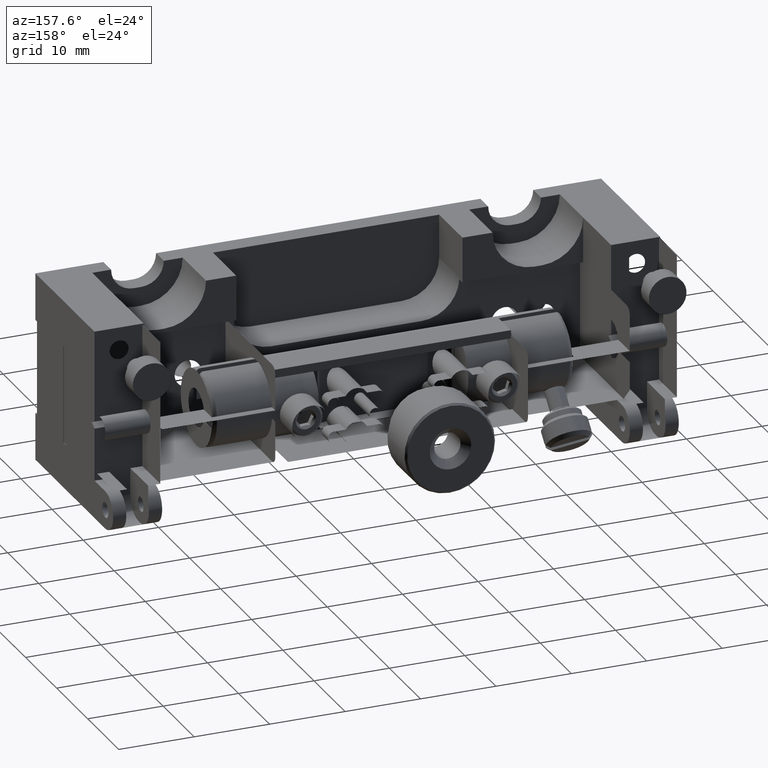
[diagram: clean part render]
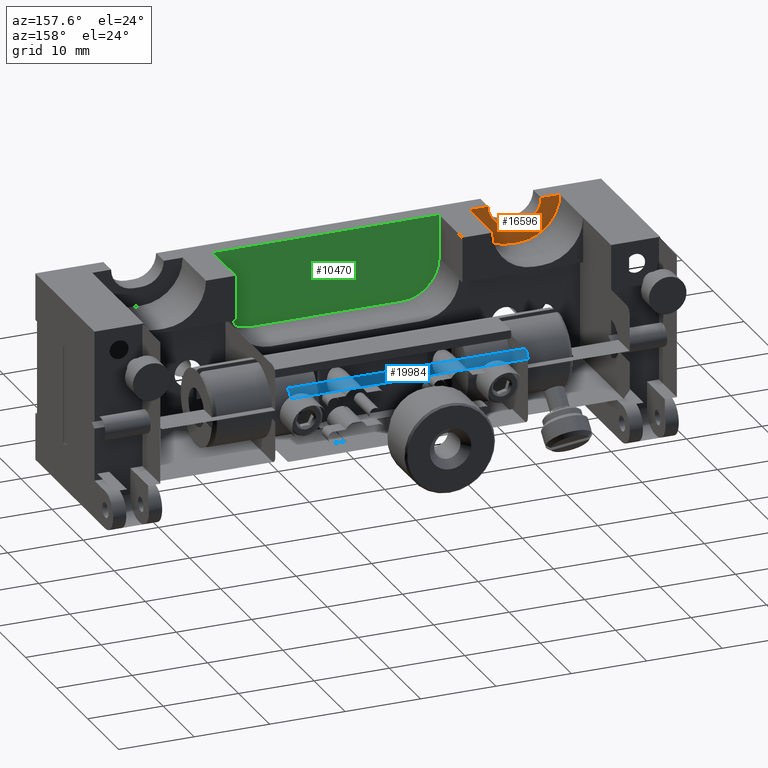
[diagram: same view with three faces highlighted in distinct colors, each labeled with its STEP entity id]
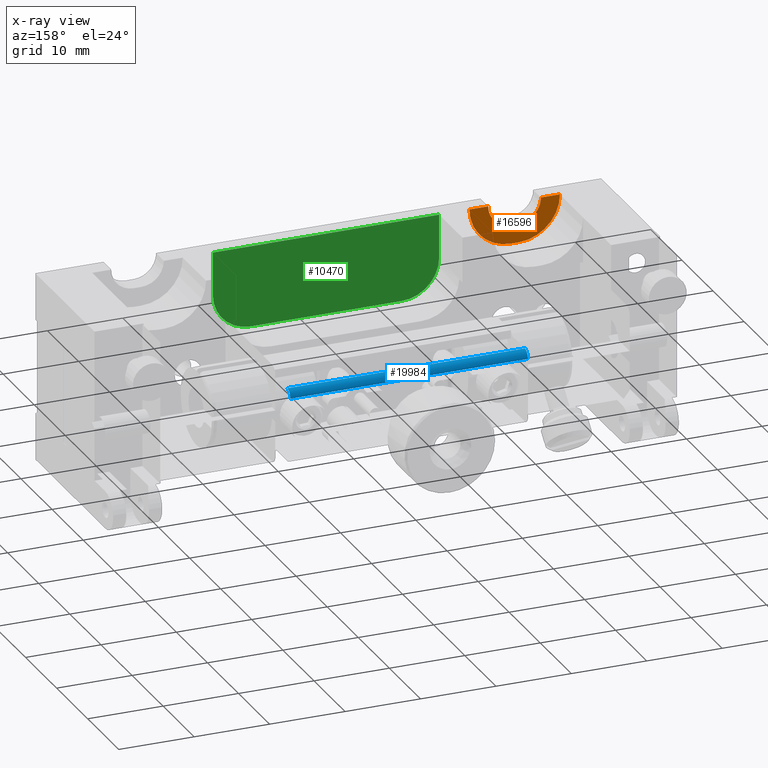
[diagram: x-ray of the same camera — body ghosted, the three highlighted faces saturated]
A machine part, auxiliary view with three faces highlighted in distinct colors.
The next image is the same camera in x-ray (body ghosted, the three faces saturated) — at least one of them is partly hidden behind the body in this view.
Their STEP definitions:

[orange] entity #16596 — the highlighted planar face has unit normal (0, 1, 0).
#211 = CIRCLE ( 'NONE', #2846, 3.000000000000002665 ) ;
#879 = EDGE_LOOP ( 'NONE', ( #17525, #12433, #13185, #8329, #10308, #6714, #9488, #5552 ) ) ;
#1086 = CIRCLE ( 'NONE', #10668, 5.500000000000005329 ) ;
#1108 = VERTEX_POINT ( 'NONE', #18504 ) ;
#1120 = DIRECTION ( 'NONE',  ( 0.000000000000000000, 0.000000000000000000, 1.000000000000000000 ) ) ;
#1355 = CARTESIAN_POINT ( 'NONE',  ( -4.673654033717510536, 30.67343476192750629, 78.43264947075056170 ) ) ;
#2178 = DIRECTION ( 'NONE',  ( -0.000000000000000000, -1.000000000000000000, -0.000000000000000000 ) ) ;
#2310 = EDGE_CURVE ( 'NONE', #16627, #16147, #211, .T. ) ;
#2798 = VERTEX_POINT ( 'NONE', #17398 ) ;
#2846 = AXIS2_PLACEMENT_3D ( 'NONE', #17420, #17524, #9760 ) ;
#3755 = AXIS2_PLACEMENT_3D ( 'NONE', #7044, #2178, #18309 ) ;
#4324 = VECTOR ( 'NONE', #10069, 1000.000000000000000 ) ;
#5552 = ORIENTED_EDGE ( 'NONE', *, *, #8541, .T. ) ;
#6127 = DIRECTION ( 'NONE',  ( 0.000000000000000000, 0.000000000000000000, 1.000000000000000000 ) ) ;
#6289 = AXIS2_PLACEMENT_3D ( 'NONE', #13164, #16379, #17818 ) ;
#6714 = ORIENTED_EDGE ( 'NONE', *, *, #8888, .T. ) ;
#7044 = CARTESIAN_POINT ( 'NONE',  ( -4.673654033717510536, 30.67343476192750629, 78.43264947075056170 ) ) ;
#7334 = VECTOR ( 'NONE', #13224, 1000.000000000000000 ) ;
#7696 = CIRCLE ( 'NONE', #3755, 3.000000000000002665 ) ;
#8065 = VERTEX_POINT ( 'NONE', #16310 ) ;
#8309 = PLANE ( 'NONE',  #6289 ) ;
#8329 = ORIENTED_EDGE ( 'NONE', *, *, #2310, .T. ) ;
#8541 = EDGE_CURVE ( 'NONE', #2798, #12044, #1086, .T. ) ;
#8829 = LINE ( 'NONE', #18347, #4324 ) ;
#8888 = EDGE_CURVE ( 'NONE', #8065, #20205, #7696, .T. ) ;
#8981 = AXIS2_PLACEMENT_3D ( 'NONE', #18404, #12391, #1120 ) ;
#9309 = EDGE_CURVE ( 'NONE', #16147, #8065, #16436, .T. ) ;
#9488 = ORIENTED_EDGE ( 'NONE', *, *, #15896, .T. ) ;
#9760 = DIRECTION ( 'NONE',  ( 0.000000000000000000, 0.000000000000000000, 1.000000000000000000 ) ) ;
#10054 = FACE_OUTER_BOUND ( 'NONE', #879, .T. ) ;
#10069 = DIRECTION ( 'NONE',  ( -1.000000000000000000, 0.000000000000000000, -0.000000000000000000 ) ) ;
#10308 = ORIENTED_EDGE ( 'NONE', *, *, #9309, .T. ) ;
#10668 = AXIS2_PLACEMENT_3D ( 'NONE', #1355, #15350, #6127 ) ;
#11123 = CARTESIAN_POINT ( 'NONE',  ( -5.673654033717509648, 30.67343476192750629, 75.43264947075054749 ) ) ;
#11254 = EDGE_CURVE ( 'NONE', #1108, #13538, #14950, .T. ) ;
#11891 = CARTESIAN_POINT ( 'NONE',  ( -4.673654033717510536, 30.67343476192750629, 72.93264947075056170 ) ) ;
#12044 = VERTEX_POINT ( 'NONE', #11891 ) ;
#12344 = EDGE_CURVE ( 'NONE', #13538, #16627, #19435, .T. ) ;
#12391 = DIRECTION ( 'NONE',  ( 0.000000000000000000, 1.000000000000000000, 0.000000000000000000 ) ) ;
#12433 = ORIENTED_EDGE ( 'NONE', *, *, #11254, .T. ) ;
#13164 = CARTESIAN_POINT ( 'NONE',  ( -5.673654033717511425, 30.67343476192750629, 78.43264947075056170 ) ) ;
#13185 = ORIENTED_EDGE ( 'NONE', *, *, #12344, .T. ) ;
#13224 = DIRECTION ( 'NONE',  ( 1.000000000000000000, 0.000000000000000000, -0.000000000000000000 ) ) ;
#13538 = VERTEX_POINT ( 'NONE', #14564 ) ;
#13563 = VECTOR ( 'NONE', #15954, 1000.000000000000000 ) ;
#14564 = CARTESIAN_POINT ( 'NONE',  ( -11.17365403371751320, 30.67343476192750629, 78.43264947075056170 ) ) ;
#14950 = CIRCLE ( 'NONE', #8981, 5.500000000000005329 ) ;
#15091 = EDGE_CURVE ( 'NONE', #12044, #1108, #8829, .T. ) ;
#15350 = DIRECTION ( 'NONE',  ( 0.000000000000000000, 1.000000000000000000, 0.000000000000000000 ) ) ;
#15896 = EDGE_CURVE ( 'NONE', #20205, #2798, #17597, .T. ) ;
#15954 = DIRECTION ( 'NONE',  ( 1.000000000000000000, -0.000000000000000000, 0.000000000000000000 ) ) ;
#16147 = VERTEX_POINT ( 'NONE', #11123 ) ;
#16236 = CARTESIAN_POINT ( 'NONE',  ( -5.673654033717511425, 30.67343476192750629, 75.43264947075054749 ) ) ;
#16248 = CARTESIAN_POINT ( 'NONE',  ( -17.67365403371751498, 30.67343476192750629, 78.43264947075056170 ) ) ;
#16310 = CARTESIAN_POINT ( 'NONE',  ( -4.673654033717512313, 30.67343476192750629, 75.43264947075054749 ) ) ;
#16379 = DIRECTION ( 'NONE',  ( 0.000000000000000000, 1.000000000000000000, 0.000000000000000000 ) ) ;
#16436 = LINE ( 'NONE', #16236, #7334 ) ;
#16531 = CARTESIAN_POINT ( 'NONE',  ( -17.67365403371751498, 30.67343476192750629, 78.43264947075056170 ) ) ;
#16596 = ADVANCED_FACE ( 'NONE', ( #10054 ), #8309, .T. ) ;
#16627 = VERTEX_POINT ( 'NONE', #17623 ) ;
#17398 = CARTESIAN_POINT ( 'NONE',  ( 0.8263459662824911289, 30.67343476192750629, 78.43264947075056170 ) ) ;
#17420 = CARTESIAN_POINT ( 'NONE',  ( -5.673654033717511425, 30.67343476192750629, 78.43264947075056170 ) ) ;
#17524 = DIRECTION ( 'NONE',  ( -0.000000000000000000, -1.000000000000000000, -0.000000000000000000 ) ) ;
#17525 = ORIENTED_EDGE ( 'NONE', *, *, #15091, .T. ) ;
#17597 = LINE ( 'NONE', #16248, #13563 ) ;
#17623 = CARTESIAN_POINT ( 'NONE',  ( -8.673654033717513201, 30.67343476192750629, 78.43264947075056170 ) ) ;
#17818 = DIRECTION ( 'NONE',  ( 0.000000000000000000, -0.000000000000000000, 1.000000000000000000 ) ) ;
#17883 = DIRECTION ( 'NONE',  ( 1.000000000000000000, -0.000000000000000000, 0.000000000000000000 ) ) ;
#18309 = DIRECTION ( 'NONE',  ( 1.734723475976805517E-15, 0.000000000000000000, 1.000000000000000000 ) ) ;
#18347 = CARTESIAN_POINT ( 'NONE',  ( -5.673654033717511425, 30.67343476192750629, 72.93264947075056170 ) ) ;
#18404 = CARTESIAN_POINT ( 'NONE',  ( -5.673654033717511425, 30.67343476192750629, 78.43264947075056170 ) ) ;
#18504 = CARTESIAN_POINT ( 'NONE',  ( -5.673654033717511425, 30.67343476192750629, 72.93264947075056170 ) ) ;
#19435 = LINE ( 'NONE', #16531, #19903 ) ;
#19486 = CARTESIAN_POINT ( 'NONE',  ( -1.673654033717508094, 30.67343476192750629, 78.43264947075056170 ) ) ;
#19903 = VECTOR ( 'NONE', #17883, 1000.000000000000000 ) ;
#20205 = VERTEX_POINT ( 'NONE', #19486 ) ;

[blue] entity #19984 — the highlighted cylindrical surface (edge-blend (fillet) strip) has radius 1 mm, axis along (-1, 0, -0).
#508 = CARTESIAN_POINT ( 'NONE',  ( 3.976345966282456068, 56.83187643820164681, 70.58847379522646293 ) ) ;
#570 = CARTESIAN_POINT ( 'NONE',  ( 3.976345966282456068, 56.17343476192759510, 70.83264947075046791 ) ) ;
#934 = CARTESIAN_POINT ( 'NONE',  ( 35.47634596628246584, 57.15003086228176699, 70.08233150124986821 ) ) ;
#1600 = EDGE_CURVE ( 'NONE', #11951, #5601, #15591, .T. ) ;
#1875 = EDGE_CURVE ( 'NONE', #13410, #11951, #18263, .T. ) ;
#2157 = CARTESIAN_POINT ( 'NONE',  ( 3.976345966282456956, 56.97787175293907325, 70.44232116535812338 ) ) ;
#2288 = CARTESIAN_POINT ( 'NONE',  ( 35.47634596628245873, 56.17343476192759510, 70.83264947075046791 ) ) ;
#2485 = CARTESIAN_POINT ( 'NONE',  ( 35.47634596628245873, 57.17343476192759510, 69.83264947075046791 ) ) ;
#4168 = CARTESIAN_POINT ( 'NONE',  ( 35.47634596628245873, 56.17343476192759510, 70.83264947075046791 ) ) ;
#4349 = CARTESIAN_POINT ( 'NONE',  ( 35.47634596628246584, 57.09019741712399565, 70.23252765729353086 ) ) ;
#4456 = CARTESIAN_POINT ( 'NONE',  ( 35.47634596628246584, 56.43721502532268630, 70.79827499314562544 ) ) ;
#5031 = CARTESIAN_POINT ( 'NONE',  ( 35.47634596628245873, 56.17343476192759510, 69.83264947075046791 ) ) ;
#5376 = CARTESIAN_POINT ( 'NONE',  ( 3.976345966282457844, 57.13906028432276685, 70.09619562043870644 ) ) ;
#5601 = VERTEX_POINT ( 'NONE', #16528 ) ;
#5819 = CARTESIAN_POINT ( 'NONE',  ( 35.47634596628245873, 56.51194295192673422, 70.77377403570386605 ) ) ;
#6176 = DIRECTION ( 'NONE',  ( -1.000000000000000000, 1.424151901242255339E-16, -0.000000000000000000 ) ) ;
#6463 = ORIENTED_EDGE ( 'NONE', *, *, #8430, .F. ) ;
#6729 = CARTESIAN_POINT ( 'NONE',  ( 3.976345966282456068, 57.11455932688098613, 70.17107404871140375 ) ) ;
#6831 = CARTESIAN_POINT ( 'NONE',  ( 3.976345966282456068, 57.17343476192760221, 69.83264947075046791 ) ) ;
#7053 = VECTOR ( 'NONE', #16584, 1000.000000000000000 ) ;
#7166 = LINE ( 'NONE', #4168, #7053 ) ;
#7251 = CARTESIAN_POINT ( 'NONE',  ( 35.47634596628245873, 57.17343476192760221, 69.95963326472924848 ) ) ;
#7458 = CARTESIAN_POINT ( 'NONE',  ( 35.47634596628245873, 57.17343476192759510, 69.83264947075046791 ) ) ;
#8129 = DIRECTION ( 'NONE',  ( -1.000000000000000000, 1.424151901242255339E-16, -1.138906087958895442E-16 ) ) ;
#8176 = CARTESIAN_POINT ( 'NONE',  ( 3.976345966282456956, 56.55628646328601405, 70.75658679690145902 ) ) ;
#8430 = EDGE_CURVE ( 'NONE', #18489, #13410, #7166, .T. ) ;
#8483 = CARTESIAN_POINT ( 'NONE',  ( 3.976345966282456068, 56.65069393285024546, 70.71271918827700631 ) ) ;
#8865 = ORIENTED_EDGE ( 'NONE', *, *, #14256, .F. ) ;
#9011 = CARTESIAN_POINT ( 'NONE',  ( 35.47634596628246584, 57.05376149923904450, 70.30951362003776239 ) ) ;
#9823 = CARTESIAN_POINT ( 'NONE',  ( 3.976345966282456068, 56.30077530059653412, 70.83264947075046791 ) ) ;
#10019 = CARTESIAN_POINT ( 'NONE',  ( 3.976345966282455180, 57.10955151434127686, 70.18473469278761456 ) ) ;
#10117 = CARTESIAN_POINT ( 'NONE',  ( 3.976345966282456068, 56.60464387372921635, 70.73511502358485359 ) ) ;
#10288 = B_SPLINE_CURVE_WITH_KNOTS ( 'NONE', 3,
 ( #6831, #17987, #19234, #5376, #11474, #6729, #10019, #19343, #2157, #508, #17885, #8483, #10117, #16240, #8176, #17787, #9823, #14497 ),
 .UNSPECIFIED., .F., .F.,
 ( 4, 1, 1, 2, 2, 2, 1, 1, 2, 2, 4 ),
 ( 0.000000000000000000, 0.1250000000000188738, 0.1875000000000283107, 0.2187500000000310862, 0.2500000000000338618, 0.5000000000000095479, 0.6250000000000018874, 0.6874999999999926725, 0.7187499999999877875, 0.7499999999999830136, 1.000000000000000000 ),
 .UNSPECIFIED. ) ;
#10451 = CARTESIAN_POINT ( 'NONE',  ( 35.47634596628246584, 56.92945491100163480, 70.49079017815950010 ) ) ;
#10753 = CARTESIAN_POINT ( 'NONE',  ( 35.47634596628245873, 56.99397512690171652, 70.41168911387323703 ) ) ;
#11474 = CARTESIAN_POINT ( 'NONE',  ( 3.976345966282456068, 57.12479853297604393, 70.14120303160466108 ) ) ;
#11951 = VERTEX_POINT ( 'NONE', #2485 ) ;
#12111 = CARTESIAN_POINT ( 'NONE',  ( 35.47634596628245873, 56.52544474174795397, 70.76881517931421683 ) ) ;
#12982 = FACE_OUTER_BOUND ( 'NONE', #14233, .T. ) ;
#13410 = VERTEX_POINT ( 'NONE', #18893 ) ;
#14233 = EDGE_LOOP ( 'NONE', ( #8865, #16422, #18596, #6463 ) ) ;
#14256 = EDGE_CURVE ( 'NONE', #5601, #18489, #10288, .T. ) ;
#14497 = CARTESIAN_POINT ( 'NONE',  ( 3.976345966282456068, 56.17343476192759510, 70.83264947075046791 ) ) ;
#15127 = CARTESIAN_POINT ( 'NONE',  ( 35.47634596628246584, 57.09737208807857201, 70.21554576519517354 ) ) ;
#15227 = CARTESIAN_POINT ( 'NONE',  ( 35.47634596628245873, 56.48213882445050871, 70.78401324179893095 ) ) ;
#15591 = LINE ( 'NONE', #18481, #16682 ) ;
#16240 = CARTESIAN_POINT ( 'NONE',  ( 3.976345966282456068, 56.57345402762613418, 70.74932033316655122 ) ) ;
#16422 = ORIENTED_EDGE ( 'NONE', *, *, #1600, .F. ) ;
#16528 = CARTESIAN_POINT ( 'NONE',  ( 3.976345966282456068, 57.17343476192760221, 69.83264947075046791 ) ) ;
#16584 = DIRECTION ( 'NONE',  ( 1.000000000000000000, 4.939217819288002351E-32, 1.138906087958894703E-16 ) ) ;
#16682 = VECTOR ( 'NONE', #6176, 1000.000000000000000 ) ;
#17546 = CYLINDRICAL_SURFACE ( 'NONE', #18600, 1.000000000000000888 ) ;
#17787 = CARTESIAN_POINT ( 'NONE',  ( 3.976345966282456956, 56.42347353711714675, 70.80924557110462558 ) ) ;
#17885 = CARTESIAN_POINT ( 'NONE',  ( 3.976345966282456068, 56.75300110056421943, 70.65284714267804134 ) ) ;
#17924 = CARTESIAN_POINT ( 'NONE',  ( 35.47634596628245873, 56.23710503126505245, 70.83264947075045370 ) ) ;
#17987 = CARTESIAN_POINT ( 'NONE',  ( 3.976345966282455180, 57.17343476192761642, 69.89614136773985820 ) ) ;
#18263 = B_SPLINE_CURVE_WITH_KNOTS ( 'NONE', 3,
 ( #2288, #17924, #19965, #4456, #15227, #5819, #12111, #18628, #20160, #10451, #10753, #9011, #18326, #4349, #15127, #934, #7251, #7458 ),
 .UNSPECIFIED., .F., .F.,
 ( 4, 1, 1, 2, 2, 2, 1, 1, 2, 2, 4 ),
 ( 0.000000000000000000, 0.1249999999999914513, 0.1874999999999966138, 0.2187499999999925615, 0.2499999999999885092, 0.4999999999999467648, 0.6249999999999215072, 0.6874999999999054090, 0.7187499999999056310, 0.7499999999999059641, 1.000000000000000000 ),
 .UNSPECIFIED. ) ;
#18326 = CARTESIAN_POINT ( 'NONE',  ( 35.47634596628245873, 57.07606554176657454, 70.26360464007221651 ) ) ;
#18481 = CARTESIAN_POINT ( 'NONE',  ( 35.47634596628245873, 57.17343476192759510, 69.83264947075046791 ) ) ;
#18489 = VERTEX_POINT ( 'NONE', #570 ) ;
#18596 = ORIENTED_EDGE ( 'NONE', *, *, #1875, .F. ) ;
#18600 = AXIS2_PLACEMENT_3D ( 'NONE', #5031, #8129, #19190 ) ;
#18628 = CARTESIAN_POINT ( 'NONE',  ( 35.47634596628245873, 56.67020730942152795, 70.71141851180239257 ) ) ;
#18893 = CARTESIAN_POINT ( 'NONE',  ( 35.47634596628245873, 56.17343476192759510, 70.83264947075046791 ) ) ;
#19190 = DIRECTION ( 'NONE',  ( 0.000000000000000000, -1.000000000000000000, 0.000000000000000000 ) ) ;
#19234 = CARTESIAN_POINT ( 'NONE',  ( 3.976345966282456956, 57.16465829956040778, 69.98977212917711199 ) ) ;
#19343 = CARTESIAN_POINT ( 'NONE',  ( 3.976345966282456068, 57.05259545217990080, 70.32882008050999900 ) ) ;
#19965 = CARTESIAN_POINT ( 'NONE',  ( 35.47634596628245873, 56.33086957196340450, 70.82387300838328770 ) ) ;
#19984 = ADVANCED_FACE ( 'NONE', ( #12982 ), #17546, .F. ) ;
#20160 = CARTESIAN_POINT ( 'NONE',  ( 35.47634596628245873, 56.78271480733918253, 70.63768839949206324 ) ) ;

[green] entity #10470 — the highlighted planar face has unit normal (0, 1, 0).
#4 = DIRECTION ( 'NONE',  ( 0.000000000000000000, 0.000000000000000000, -1.000000000000000000 ) ) ;
#214 = EDGE_CURVE ( 'NONE', #1166, #9567, #3111, .T. ) ;
#712 = VECTOR ( 'NONE', #9421, 1000.000000000000000 ) ;
#1166 = VERTEX_POINT ( 'NONE', #10945 ) ;
#1529 = ORIENTED_EDGE ( 'NONE', *, *, #1815, .F. ) ;
#1815 = EDGE_CURVE ( 'NONE', #19072, #14000, #9758, .T. ) ;
#2582 = CARTESIAN_POINT ( 'NONE',  ( 4.826345966282489464, 30.67343476192750629, 72.68264947075056170 ) ) ;
#2691 = EDGE_CURVE ( 'NONE', #10103, #14000, #7128, .T. ) ;
#2756 = DIRECTION ( 'NONE',  ( 0.000000000000000000, -0.000000000000000000, 1.000000000000000000 ) ) ;
#3008 = CARTESIAN_POINT ( 'NONE',  ( 9.826345966282490352, 30.67343476192750629, 72.68264947075056170 ) ) ;
#3111 = LINE ( 'NONE', #4878, #712 ) ;
#3213 = CARTESIAN_POINT ( 'NONE',  ( 9.826345966282490352, 30.67343476192750629, 67.68264947075056170 ) ) ;
#3322 = LINE ( 'NONE', #8185, #8970 ) ;
#4693 = DIRECTION ( 'NONE',  ( -8.068481283613053329E-17, 0.000000000000000000, -1.000000000000000000 ) ) ;
#4878 = CARTESIAN_POINT ( 'NONE',  ( 34.82634596628248858, 30.67343476192750629, 89.18264947075056170 ) ) ;
#5824 = VERTEX_POINT ( 'NONE', #6672 ) ;
#6672 = CARTESIAN_POINT ( 'NONE',  ( 29.82634596628248858, 30.67343476192750629, 67.68264947075056170 ) ) ;
#6674 = CARTESIAN_POINT ( 'NONE',  ( 34.82634596628249568, 30.67343476192750629, 78.43264947075056170 ) ) ;
#7128 = CIRCLE ( 'NONE', #10424, 5.000000000000004441 ) ;
#7612 = PLANE ( 'NONE',  #13292 ) ;
#8185 = CARTESIAN_POINT ( 'NONE',  ( -17.67365403371751498, 30.67343476192750629, 78.43264947075056170 ) ) ;
#8432 = VECTOR ( 'NONE', #4693, 1000.000000000000000 ) ;
#8970 = VECTOR ( 'NONE', #14504, 1000.000000000000000 ) ;
#9421 = DIRECTION ( 'NONE',  ( 8.068481283613053329E-17, 0.000000000000000000, 1.000000000000000000 ) ) ;
#9487 = CARTESIAN_POINT ( 'NONE',  ( 29.82634596628248858, 30.67343476192750629, 72.68264947075056170 ) ) ;
#9567 = VERTEX_POINT ( 'NONE', #6674 ) ;
#9758 = LINE ( 'NONE', #18854, #8432 ) ;
#10103 = VERTEX_POINT ( 'NONE', #3213 ) ;
#10424 = AXIS2_PLACEMENT_3D ( 'NONE', #3008, #11075, #4 ) ;
#10470 = ADVANCED_FACE ( 'NONE', ( #12260 ), #7612, .T. ) ;
#10924 = DIRECTION ( 'NONE',  ( -0.000000000000000000, 1.000000000000000000, -0.000000000000000000 ) ) ;
#10945 = CARTESIAN_POINT ( 'NONE',  ( 34.82634596628249568, 30.67343476192750629, 72.68264947075056170 ) ) ;
#11075 = DIRECTION ( 'NONE',  ( -0.000000000000000000, 1.000000000000000000, -0.000000000000000000 ) ) ;
#11223 = ORIENTED_EDGE ( 'NONE', *, *, #12450, .F. ) ;
#11263 = AXIS2_PLACEMENT_3D ( 'NONE', #9487, #10924, #12380 ) ;
#11321 = VECTOR ( 'NONE', #20224, 1000.000000000000000 ) ;
#12260 = FACE_OUTER_BOUND ( 'NONE', #18843, .T. ) ;
#12380 = DIRECTION ( 'NONE',  ( 0.000000000000000000, 0.000000000000000000, -1.000000000000000000 ) ) ;
#12450 = EDGE_CURVE ( 'NONE', #10103, #5824, #13930, .T. ) ;
#13292 = AXIS2_PLACEMENT_3D ( 'NONE', #13920, #18782, #2756 ) ;
#13920 = CARTESIAN_POINT ( 'NONE',  ( 19.82634596628248858, 30.67343476192750629, 65.93264947075056170 ) ) ;
#13930 = LINE ( 'NONE', #19826, #11321 ) ;
#14000 = VERTEX_POINT ( 'NONE', #2582 ) ;
#14504 = DIRECTION ( 'NONE',  ( 1.000000000000000000, -0.000000000000000000, 0.000000000000000000 ) ) ;
#14591 = CIRCLE ( 'NONE', #11263, 5.000000000000004441 ) ;
#15765 = EDGE_CURVE ( 'NONE', #19072, #9567, #3322, .T. ) ;
#16188 = ORIENTED_EDGE ( 'NONE', *, *, #15765, .T. ) ;
#16334 = ORIENTED_EDGE ( 'NONE', *, *, #2691, .T. ) ;
#18699 = ORIENTED_EDGE ( 'NONE', *, *, #214, .F. ) ;
#18782 = DIRECTION ( 'NONE',  ( 0.000000000000000000, 1.000000000000000000, 0.000000000000000000 ) ) ;
#18843 = EDGE_LOOP ( 'NONE', ( #1529, #16188, #18699, #20127, #11223, #16334 ) ) ;
#18854 = CARTESIAN_POINT ( 'NONE',  ( 4.826345966282490352, 30.67343476192750629, 89.18264947075056170 ) ) ;
#18911 = EDGE_CURVE ( 'NONE', #1166, #5824, #14591, .T. ) ;
#19072 = VERTEX_POINT ( 'NONE', #19111 ) ;
#19111 = CARTESIAN_POINT ( 'NONE',  ( 4.826345966282490352, 30.67343476192750629, 78.43264947075056170 ) ) ;
#19826 = CARTESIAN_POINT ( 'NONE',  ( 4.826345966282489464, 30.67343476192750629, 67.68264947075056170 ) ) ;
#20127 = ORIENTED_EDGE ( 'NONE', *, *, #18911, .T. ) ;
#20224 = DIRECTION ( 'NONE',  ( 1.000000000000000000, 0.000000000000000000, -0.000000000000000000 ) ) ;